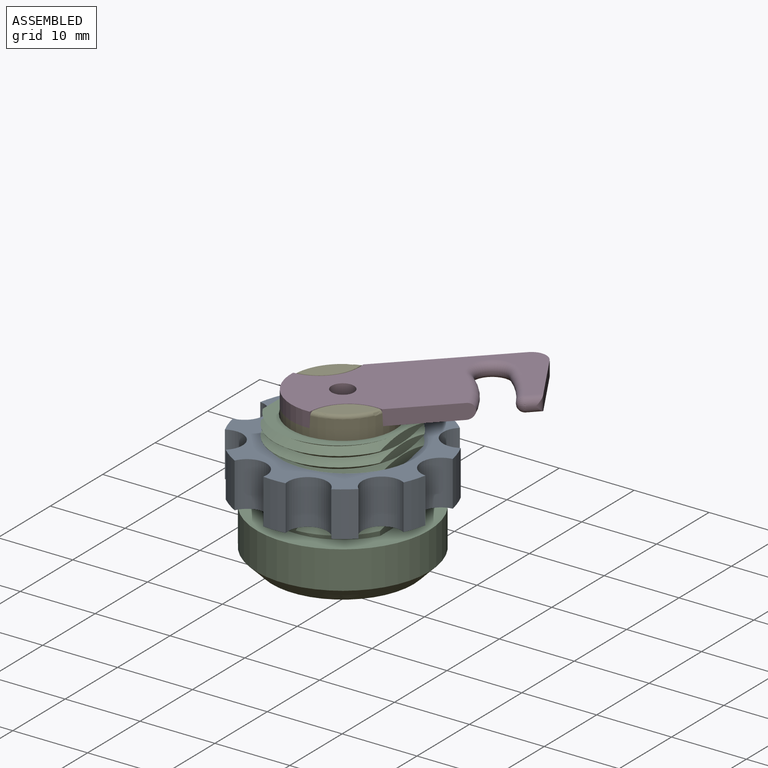
[diagram: assembled view]
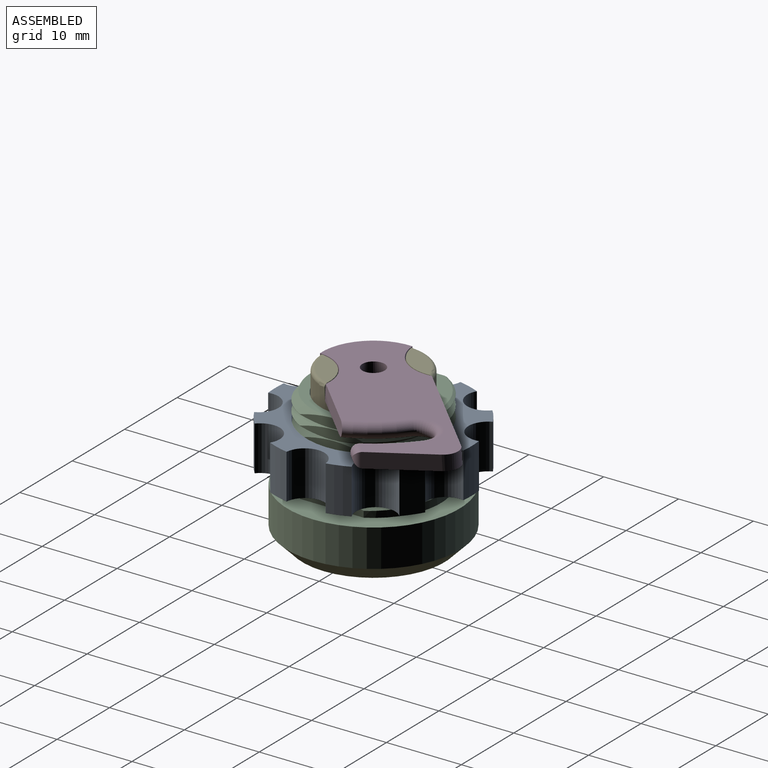
[diagram: assembled view, second angle]
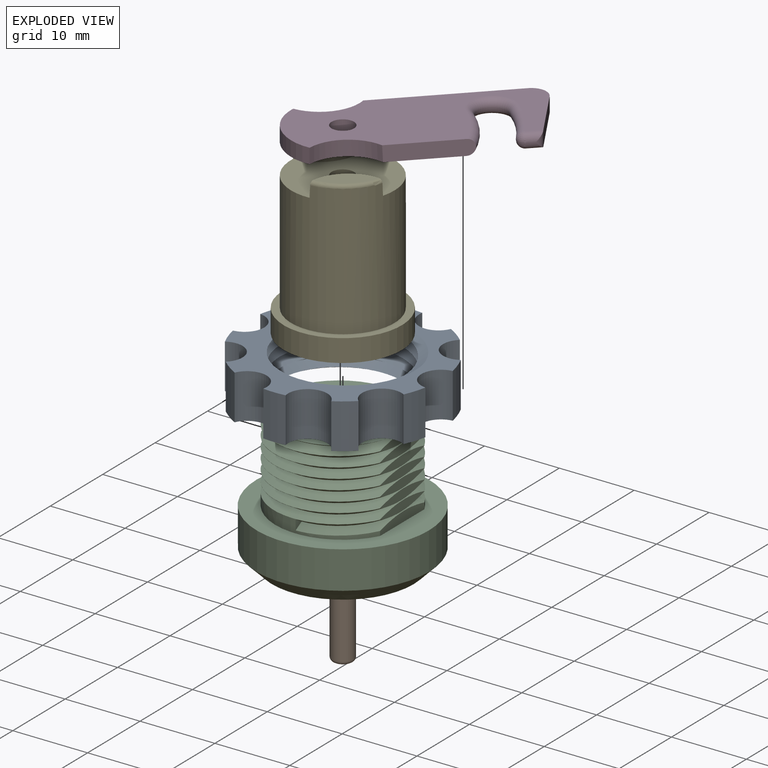
[diagram: exploded view]
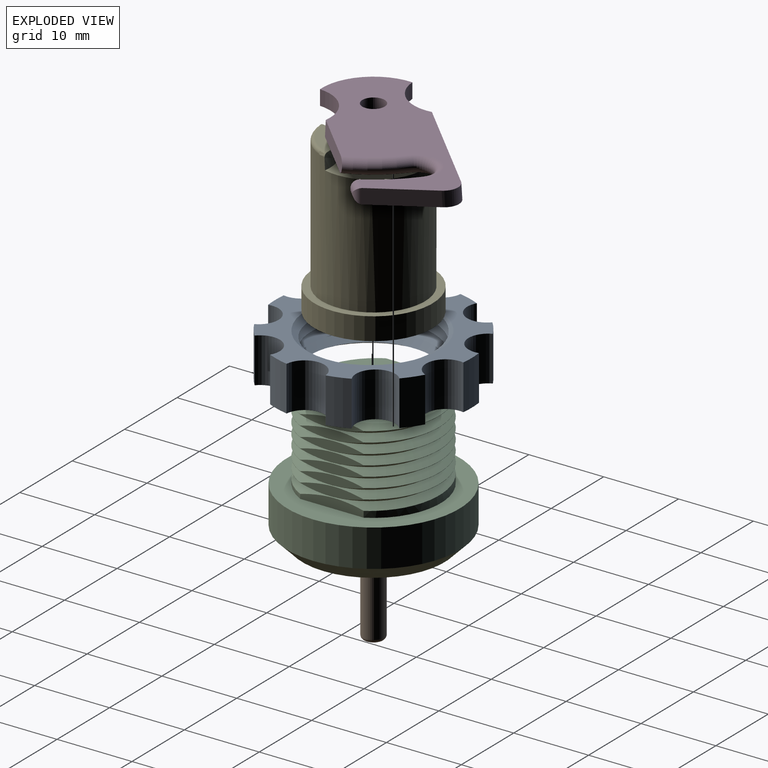
[diagram: exploded view, second angle]
ASSEMBLY  parts=5 mates=4
PART A: 25 faces, bbox 26.8x27.3x8.6 mm
  f0: plane 27.29x26.77mm, normal (0,0,1), area 190.4mm2, adj f2,f3,f4,f5,f6,f7,f8,f9
  f1: plane 27.27x26.74mm, normal (0,0,-1), area 190.4mm2, adj f2,f3,f4,f5,f6,f7,f8,f9
  f2: cylinder r=2.62mm len=6mm, axis (0,0,-1), area 46.3mm2, adj f0,f1,f3,f21
  f3: cylinder r=13.12mm len=6mm, axis (0,0,-1), area 17.9mm2, adj f0,f1,f2,f4
  f4: cylinder r=2.62mm len=6mm, axis (0,0,-1), area 46.3mm2, adj f0,f1,f3,f5
  f5: cylinder r=13.12mm len=6mm, axis (0,0,-1), area 17.9mm2, adj f0,f1,f4,f6
  f6: cylinder r=2.62mm len=6mm, axis (0,0,-1), area 46.3mm2, adj f0,f1,f5,f7
  f7: cylinder r=13.12mm len=6mm, axis (0,0,-1), area 17.9mm2, adj f0,f1,f6,f8
  f8: cylinder r=2.62mm len=6mm, axis (0,0,-1), area 46.3mm2, adj f0,f1,f7,f9
  f9: cylinder r=13.12mm len=6mm, axis (0,0,-1), area 17.9mm2, adj f0,f1,f8,f10
  f10: cylinder r=2.62mm len=6mm, axis (0,0,-1), area 46.3mm2, adj f0,f1,f9,f11
  f11: cylinder r=13.12mm len=6mm, axis (0,0,-1), area 17.9mm2, adj f0,f1,f10,f12
  f12: cylinder r=2.62mm len=6mm, axis (0,0,-1), area 46.3mm2, adj f0,f1,f11,f13
  f13: cylinder r=13.12mm len=6mm, axis (0,0,-1), area 17.9mm2, adj f0,f1,f12,f14
  f14: cylinder r=2.62mm len=6mm, axis (0,0,-1), area 46.3mm2, adj f0,f1,f13,f15
  f15: cylinder r=13.12mm len=6mm, axis (0,0,-1), area 17.9mm2, adj f0,f1,f14,f16
  f16: cylinder r=2.62mm len=6mm, axis (0,0,-1), area 46.3mm2, adj f0,f1,f15,f17
  f17: cylinder r=13.12mm len=6mm, axis (0,0,-1), area 17.9mm2, adj f0,f1,f16,f18
  f18: cylinder r=2.62mm len=6mm, axis (0,0,-1), area 46.3mm2, adj f0,f1,f17,f19
  f19: cylinder r=13.12mm len=6mm, axis (0,0,-1), area 17.9mm2, adj f0,f1,f18,f20
  f20: cylinder r=2.62mm len=6mm, axis (0,0,-1), area 46.3mm2, adj f0,f1,f19,f21
  f21: cylinder r=13.12mm len=6mm, axis (0,0,-1), area 17.9mm2, adj f0,f1,f2,f20
  f22: cylinder r=9.45mm len=18.9mm, axis (0,0,-1), area 10.5mm2, adj f0,f1,f23,f24
  f23: bspline ~21.91x18.98mm, area 332.3mm2, adj f0,f1,f22,f24
  f24: bspline ~21.91x18.98mm, area 339mm2, adj f0,f1,f22,f23
PART B: 4 faces, bbox 3.1x3.1x10 mm
  f0: cylinder r=1.45mm len=9.5mm, axis (0,0,-1), area 86.6mm2, adj f1,f3
  f1: plane 2.9x2.9mm, normal (0,0,1), area 6.6mm2, adj f0
  f2: plane 1.9x1.9mm, normal (0,0,-1), area 2.8mm2, adj f3
  f3: torus R=0.95mm, axis (0,0,1), area 6.3mm2, adj f0,f2
PART C: 43 faces, bbox 23.7x23.7x19.5 mm
  f0: cylinder r=9mm len=15.88mm, axis (0,0,-1), area 21mm2, adj f16,f17,f21,f25,f33,f40,f41
  f1: cylinder r=9mm len=15.88mm, axis (0,0,-1), area 0.8mm2, adj f16,f17,f32,f39
  f2: cylinder r=9mm len=15.88mm, axis (0,0,-1), area 0.8mm2, adj f16,f17,f31,f38
  f3: cylinder r=9mm len=15.88mm, axis (0,0,-1), area 0.8mm2, adj f16,f17,f30,f37
  f4: cylinder r=9mm len=15.88mm, axis (0,0,-1), area 0.8mm2, adj f16,f17,f29,f36
  f5: cylinder r=9mm len=15.88mm, axis (0,0,-1), area 0.8mm2, adj f16,f17,f28,f35
  f6: cylinder r=9mm len=15.88mm, axis (0,0,-1), area 0.8mm2, adj f16,f17,f27,f34
  f7: cylinder r=9mm len=15.88mm, axis (0,0,-1), area 0.8mm2, adj f16,f17,f26,f33
  f8: cylinder r=9mm len=15.88mm, axis (0,0,-1), area 20.6mm2, adj f16,f21,f40,f41
  f9: cylinder r=9mm len=15.88mm, axis (0,0,-1), area 0.8mm2, adj f16,f17,f26,f34
  f10: cylinder r=9mm len=15.88mm, axis (0,0,-1), area 0.8mm2, adj f16,f17,f27,f35
  f11: cylinder r=9mm len=15.88mm, axis (0,0,-1), area 0.8mm2, adj f16,f17,f28,f36
  f12: cylinder r=9mm len=15.88mm, axis (0,0,-1), area 0.8mm2, adj f16,f17,f29,f37
  f13: cylinder r=9mm len=15.88mm, axis (0,0,-1), area 0.8mm2, adj f16,f17,f30,f38
  f14: cylinder r=9mm len=15.88mm, axis (0,0,-1), area 0.8mm2, adj f16,f17,f31,f39
  f15: plane 17.57x16.5mm, normal (0,0,1), area 64.7mm2, adj f16,f17,f18,f32
  f16: bspline ~20.87x18.07mm, area 419.7mm2, adj f0,f1,f2,f3,f4,f5,f6,f7
  f17: bspline ~20.87x18.07mm, area 401.8mm2, adj f0,f1,f2,f3,f4,f5,f6,f7
  f18: cylinder r=7mm len=15.7mm, axis (0,0,-1), area 690.5mm2, adj f15,f42
  f19: cylinder r=11.5mm len=23mm, axis (0,0,1), area 361.3mm2, adj f21,f22
  f20: plane 19x19mm, normal (0,0,-1), area 82.5mm2, adj f22,f23
  f21: plane 23x23mm, normal (0,0,1), area 173.2mm2, adj f0,f8,f19,f40,f41
  f22: cone r=11.5mm half-angle=45deg, axis (0,0,1), area 186.6mm2, adj f19,f20
  f23: cylinder r=8mm len=16mm, axis (0,0,-1), area 100.5mm2, adj f20,f24
  f24: plane 16x16mm, normal (0,0,-1), area 33.6mm2, adj f23,f42
  f25: plane 1.33x1.15mm, normal (1,0,0), area 0.8mm2, adj f0,f16,f17
  f26: plane 8.48x1.28mm, normal (-1,0,0), area 7.2mm2, adj f7,f9,f16,f17
  f27: plane 8.48x1.28mm, normal (-1,0,0), area 7.2mm2, adj f6,f10,f16,f17
  f28: plane 8.48x1.28mm, normal (-1,0,0), area 7.2mm2, adj f5,f11,f16,f17
  f29: plane 8.48x1.28mm, normal (-1,0,0), area 7.2mm2, adj f4,f12,f16,f17
  f30: plane 8.48x1.28mm, normal (-1,0,0), area 7.2mm2, adj f3,f13,f16,f17
  f31: plane 8.48x1.28mm, normal (-1,0,0), area 7.2mm2, adj f2,f14,f16,f17
  f32: plane 8.17x0.66mm, normal (-1,0,0), area 3.7mm2, adj f1,f15,f16,f17
  f33: plane 8.48x1.28mm, normal (1,0,0), area 7.2mm2, adj f0,f7,f16,f17
  f34: plane 8.48x1.28mm, normal (1,0,0), area 7.2mm2, adj f6,f9,f16,f17
  f35: plane 8.48x1.28mm, normal (1,0,0), area 7.2mm2, adj f5,f10,f16,f17
  f36: plane 8.48x1.28mm, normal (1,0,0), area 7.2mm2, adj f4,f11,f16,f17
  f37: plane 8.48x1.28mm, normal (1,0,0), area 7.2mm2, adj f3,f12,f16,f17
  f38: plane 8.48x1.28mm, normal (1,0,0), area 7.2mm2, adj f2,f13,f16,f17
  f39: plane 8.48x1.28mm, normal (1,0,0), area 7.2mm2, adj f1,f14,f16,f17
  f40: plane 8.48x2mm, normal (-1,0,0), area 15.2mm2, adj f0,f8,f16,f21
  f41: plane 8.48x1.31mm, normal (1,0,0), area 9.4mm2, adj f0,f8,f16,f21
  f42: cone r=7mm half-angle=45deg, axis (0,0,-1), area 19.1mm2, adj f18,f24
PART D: 16 faces, bbox 30.6x13x2.2 mm
  f0: plane 10.45x2.01mm, normal (0,1,-0.05), area 20.4mm2, adj f1,f6,f7,f8
  f1: cylinder r=5.39mm len=8.01mm, axis (0,0,1), area 18.1mm2, adj f0,f2,f6,f7
  f2: cylinder r=6.9mm len=10.27mm, axis (0,0,1), area 23.2mm2, adj f1,f3,f6,f7
  f3: cylinder r=5.39mm len=8.01mm, axis (0,0,1), area 18.1mm2, adj f2,f4,f6,f7
  f4: plane 18.36x2.01mm, normal (0,-1,-0.05), area 36.7mm2, adj f3,f6,f7,f15
  f5: plane 8.75x2.27mm, normal (0.97,0.25,0), area 18mm2, adj f6,f7,f9,f10,f15
  f6: plane 30.56x11.79mm, normal (0,0,-1), area 241.7mm2, adj f0,f1,f2,f3,f4,f5,f8,f9
  f7: plane 30.58x12mm, normal (0,0,1), area 244.9mm2, adj f0,f1,f2,f3,f4,f5,f8,f9
  f8: torus R=14mm, axis (0,0,1), area 24mm2, adj f0,f6,f7,f11
  f9: cylinder r=1mm len=2.04mm, axis (1,0,0), area 5.2mm2, adj f5,f6,f7,f10,f12
  f10: cylinder r=1mm len=1.94mm, axis (0,0,1), area 1.5mm2, adj f5,f9
  f11: torus R=3mm, axis (0,0,1), area 23.3mm2, adj f6,f7,f8,f13
  f12: sphere r=1mm, area 3.6mm2, adj f9,f13
  f13: torus R=20mm, axis (0,0,1), area 21.6mm2, adj f6,f7,f11,f12
  f14: cylinder r=1.5mm len=3mm, axis (0,0,1), area 18.8mm2, adj f6,f7
  f15: cylinder r=2mm len=2.61mm, axis (0.01,-0.05,1), area 7.3mm2, adj f4,f5,f6,f7
PART E: 18 faces, bbox 15.8x15.8x21 mm
  f0: cylinder r=6.9mm len=17.5mm, axis (0,0,-1), area 719.3mm2, adj f3,f11,f12,f13,f14,f15
  f1: plane 7.14x2.56mm, normal (0,0,1), area 12.3mm2, adj f12,f14
  f2: plane 7.14x2.56mm, normal (0,0,1), area 12.3mm2, adj f13,f15
  f3: plane 15.8x15.8mm, normal (0,0,1), area 46.5mm2, adj f0,f7
  f4: plane 9.52x3mm, normal (0,1,0), area 28.6mm2, adj f5,f8,f9,f10
  f5: plane 3x1.84mm, normal (1,0,0), area 5.5mm2, adj f4,f6,f9,f10
  f6: plane 9.52x3mm, normal (0,-1,0), area 28.6mm2, adj f5,f8,f9,f10
  f7: cylinder r=7.9mm len=15.8mm, axis (0,0,1), area 148.9mm2, adj f3,f9
  f8: plane 3x1.84mm, normal (-1,0,0), area 5.5mm2, adj f4,f6,f9,f10
  f9: plane 15.8x15.8mm, normal (0,0,-1), area 178.5mm2, adj f4,f5,f6,f7,f8
  f10: plane 9.52x1.84mm, normal (0,0,-1), area 17.5mm2, adj f4,f5,f6,f8
  f11: plane 13.8x12mm, normal (0,0,1), area 108mm2, adj f0,f12,f13,f17
  f12: cone r=5.39mm half-angle=3deg, axis (0,0,-1), area 17.9mm2, adj f0,f1,f11,f14
  f13: cone r=5.39mm half-angle=3deg, axis (0,0,-1), area 17.9mm2, adj f0,f2,f11,f15
  f14: torus R=6.4mm, axis (0,0,1), area 6.4mm2, adj f0,f1,f12
  f15: torus R=6.4mm, axis (0,0,1), area 6.4mm2, adj f0,f2,f13
  f16: cone r=0mm half-angle=59deg, axis (0,0,1), area 8.2mm2, adj f17
  f17: cylinder r=1.5mm len=8mm, axis (0,0,1), area 75.4mm2, adj f11,f16
PLACE A t=(30.07,-5.68,-36.54)mm
PLACE B rot(axis=(0,0,1),45deg) t=(30.07,-5.68,-11.54)mm
PLACE C t=(30.07,-5.68,-13.54)mm
PLACE D rot(axis=(0.92,0.38,0),180deg) t=(30.07,-5.68,-23.54)mm
PLACE E rot(axis=(0,0,1),45deg) t=(30.07,-5.68,22.46)mm
MATE fastened C.f19 <-> A.f22  axis (0,0,-1) through (30.07,-5.68,-13.54)mm
MATE revolute E.f7 <-> C.f23  axis (0,0,-1) through (30.07,-5.68,-20.54)mm
MATE fastened D.f2 <-> E.f0  axis (0,0,1) through (30.07,-5.68,-1.54)mm
MATE fastened B.f0 <-> D.f13  axis (0,0,-1) through (30.07,-5.68,-1.54)mm
